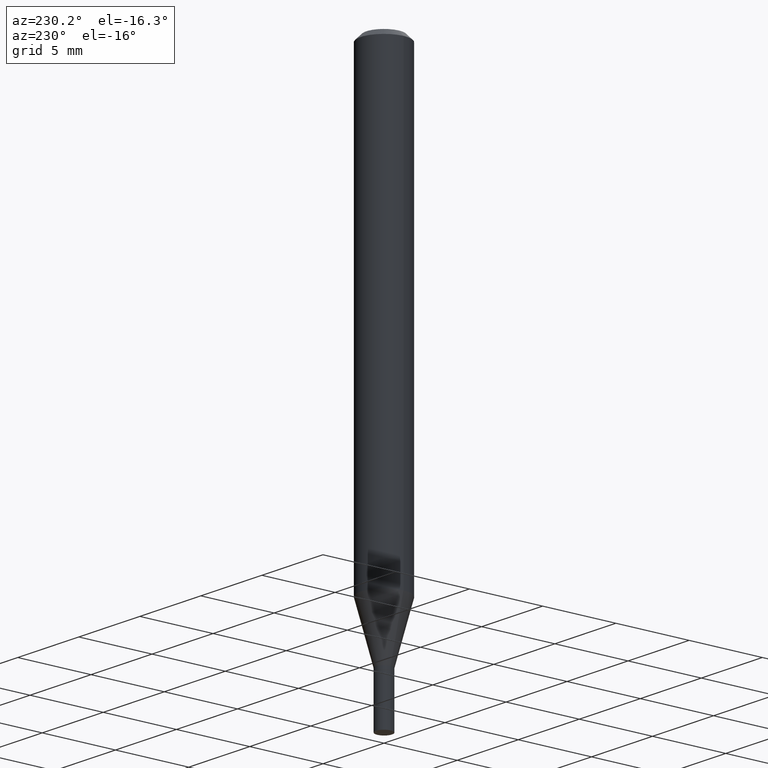
[diagram: clean part render]
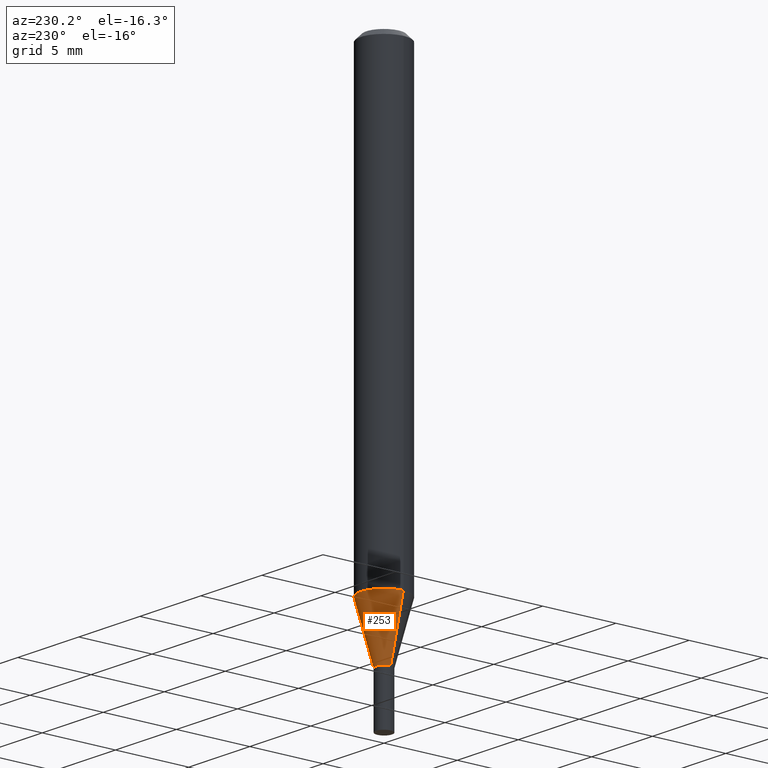
[diagram: same view with one face highlighted and labeled with its STEP entity id]
A machine part, auxiliary view. The second image highlights one B-rep face of the part: STEP entity #253.
In plain terms, the highlighted conical surface has half-angle 15 deg.
Its self-contained STEP definition (entity closure, byte-faithful):
#13 = DIRECTION ( 'NONE',  ( 1.000000000000000000, -6.982962677686246200E-15, 0.000000000000000000 ) ) ;
#19 = CIRCLE ( 'NONE', #440, 0.02149999999999991848 ) ;
#37 = ORIENTED_EDGE ( 'NONE', *, *, #225, .T. ) ;
#42 = DIRECTION ( 'NONE',  ( -0.2588190451025214611, 5.211531920934550253E-15, 0.9659258262890679791 ) ) ;
#49 = CARTESIAN_POINT ( 'NONE',  ( 3.328283045217970545E-29, -4.751906102165520463E-15, -1.360999999999999988 ) ) ;
#85 = VECTOR ( 'NONE', #42, 39.37007874015748143 ) ;
#88 = LINE ( 'NONE', #307, #167 ) ;
#122 = ORIENTED_EDGE ( 'NONE', *, *, #269, .F. ) ;
#128 = AXIS2_PLACEMENT_3D ( 'NONE', #49, #185, #13 ) ;
#156 = AXIS2_PLACEMENT_3D ( 'NONE', #379, #368, #157 ) ;
#157 = DIRECTION ( 'NONE',  ( 1.000000000000000000, -6.982962677686262766E-15, 0.000000000000000000 ) ) ;
#163 = VERTEX_POINT ( 'NONE', #168 ) ;
#167 = VECTOR ( 'NONE', #447, 39.37007874015748143 ) ;
#168 = CARTESIAN_POINT ( 'NONE',  ( 0.06249999999999999306, -4.654095453761022619E-15, -1.207985916889676270 ) ) ;
#185 = DIRECTION ( 'NONE',  ( -2.445468806185136597E-29, 3.491481338843145583E-15, 1.000000000000000000 ) ) ;
#193 = VERTEX_POINT ( 'NONE', #273 ) ;
#199 = DIRECTION ( 'NONE',  ( -2.445468806185136597E-29, 3.491481338843145583E-15, 1.000000000000000000 ) ) ;
#208 = ORIENTED_EDGE ( 'NONE', *, *, #367, .T. ) ;
#218 = CARTESIAN_POINT ( 'NONE',  ( -0.06249999999999999306, -3.773571076555568334E-15, -1.207985916889676270 ) ) ;
#225 = EDGE_CURVE ( 'NONE', #466, #328, #373, .T. ) ;
#242 = CARTESIAN_POINT ( 'NONE',  ( 3.328283045217970545E-29, -4.751906102165520463E-15, -1.360999999999999988 ) ) ;
#253 = ADVANCED_FACE ( 'NONE', ( #439 ), #377, .T. ) ;
#269 = EDGE_CURVE ( 'NONE', #193, #163, #88, .T. ) ;
#273 = CARTESIAN_POINT ( 'NONE',  ( 0.02149999999999991848, -4.902039799735774503E-15, -1.360999999999999988 ) ) ;
#275 = CIRCLE ( 'NONE', #156, 0.06250000000000000000 ) ;
#276 = EDGE_CURVE ( 'NONE', #163, #328, #275, .T. ) ;
#307 = CARTESIAN_POINT ( 'NONE',  ( 0.02149999999999991848, -4.902039799735774503E-15, -1.360999999999999988 ) ) ;
#308 = CARTESIAN_POINT ( 'NONE',  ( -0.02149999999999991848, -4.599139413977099971E-15, -1.360999999999999988 ) ) ;
#328 = VERTEX_POINT ( 'NONE', #218 ) ;
#356 = DIRECTION ( 'NONE',  ( 1.000000000000000000, -6.982962677686246200E-15, 0.000000000000000000 ) ) ;
#364 = EDGE_LOOP ( 'NONE', ( #208, #37, #431, #122 ) ) ;
#367 = EDGE_CURVE ( 'NONE', #193, #466, #19, .T. ) ;
#368 = DIRECTION ( 'NONE',  ( -2.445468806185136597E-29, 3.491481338843145583E-15, 1.000000000000000000 ) ) ;
#373 = LINE ( 'NONE', #308, #85 ) ;
#377 = CONICAL_SURFACE ( 'NONE', #128, 0.02149999999999991848, 0.2617993877991501850 ) ;
#379 = CARTESIAN_POINT ( 'NONE',  ( 2.954091878064654281E-29, -4.217660286405631739E-15, -1.207985916889676270 ) ) ;
#382 = CARTESIAN_POINT ( 'NONE',  ( -0.02149999999999991848, -4.186355245266334152E-15, -1.360999999999999988 ) ) ;
#431 = ORIENTED_EDGE ( 'NONE', *, *, #276, .F. ) ;
#439 = FACE_OUTER_BOUND ( 'NONE', #364, .T. ) ;
#440 = AXIS2_PLACEMENT_3D ( 'NONE', #242, #199, #356 ) ;
#447 = DIRECTION ( 'NONE',  ( 0.2588190451025214611, 1.565188264969620982E-15, 0.9659258262890679791 ) ) ;
#466 = VERTEX_POINT ( 'NONE', #382 ) ;